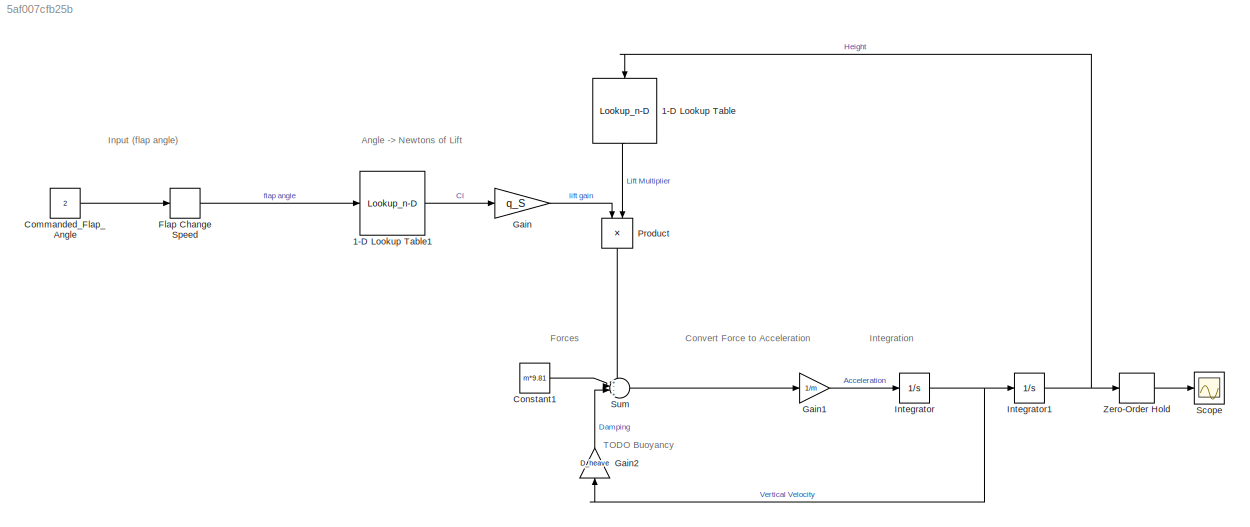
MODEL slx_5af007cfb25b
KIND model
CONFIG AbsTol = auto
CONFIG EnableMultiTasking = off
CONFIG FixedStep = auto
CONFIG MaxStep = auto
CONFIG MinStep = auto
CONFIG RelTol = 1e-3
CONFIG SampleTimeConstraint = Unconstrained
CONFIG SolverName = VariableStepAuto
CONFIG StartTime = 0.0
CONFIG StopTime = 10.0
BLOCK [Lookup_n-D] 1-D Lookup Table
  BreakpointsForDimension1 = [0, 0.4, 0.5, 0.6, 0.7]
  InputPortMap = u0
  InternalRulePriority = Speed
  NameLocation = left
  NumberOfTableDimensions = 1
  RndMeth = Simplest
  Table = [1.1, 1.0, 0.8, 0.2, 0.0]
BLOCK [Lookup_n-D] 1-D Lookup Table1
  BreakpointsForDimension1 = alpha_deg
  InputPortMap = u0
  InternalRulePriority = Speed
  NumberOfTableDimensions = 1
  RndMeth = Simplest
  Table = cl_data
BLOCK [Constant] Commanded_Flap_Angle
  Value = 2
BLOCK [Constant] Constant1
  Value = m*9.81
BLOCK [RateLimiter] Flap Change Speed
  FallingSlewLimit = -servo_max_speed
  RisingSlewLimit = servo_max_speed
  SampleTimeMode = inherited
BLOCK [Gain] Gain
  Gain = q_S
BLOCK [Gain] Gain1
  Gain = 1/m
BLOCK [Gain] Gain2
  Gain = D_heave
  NameLocation = right
BLOCK [Integrator] Integrator
BLOCK [Integrator] Integrator1
  InitialCondition = start_height
  LimitOutput = on
  LowerSaturationLimit = 0
BLOCK [Product] Product
  NameLocation = left
BLOCK [Scope] Scope
  ActiveDisplayYMaximum = 0.76754445137472849
  ActiveDisplayYMinimum = 0.075647594713752209
  ContainerLayout = {"WindowBounds":[128,96,1280,768]}
  Floating = off
  GraphicalSettings = {"Style":{"BackgroundColor":[0.12941176470588237,0.12941176470588237,0.12941176470588237],"AxesColor":[0.07058823529411765,0.07058823529411765,0.07058823529411765],"LabelsColor":[0.8509803921568627,0.8509803921568627,0.8509803921568627],"PreserveColors":false,"Visible":[true],"LineStyle":["-"],"LineWidth":[1.5],"BarWidth":[0.9],"LineColor":["auto"],"LineFaceAlpha":[1],"LineEdgeAlpha":[1],"Marker":...<+1991ch>
  MultipleDisplayCache = [{"MaxYLimMag":0.1125,"MaxYLimReal":0.76754445137472849,"MinYLimMag":0,"MinYLimReal":0.075647594713752209,"PlotAsMagnitudePhase":false,"ShowGrid":true,"ShowLegend":false,"Title":"%<SignalLabel>","YLabel":""}]
  NumInputPorts = 1
  ScopeFrameLocation = container
  Visible = on
  WasSavedAsWebScope = on
  WindowPosition = [128.000000,96.000000,1280.000000,768.000000,]
BLOCK [Sum] Sum
  Inputs = +--+
BLOCK [ZeroOrderHold] Zero-Order Hold
  SampleTime = sensor_sample_time
ANNOTATION (root): Angle -> Newtons of Lift
ANNOTATION (root): Convert Force to Acceleration
ANNOTATION (root): Forces
ANNOTATION (root): Input (flap angle)
ANNOTATION (root): Integration
ANNOTATION (root): TODO Buoyancy
LINE 1-D Lookup Table1:1 -> Gain:1
LINE 1-D Lookup Table:1 -> Product:2
LINE Commanded_Flap_Angle:1 -> Flap Change Speed:1
LINE Constant1:1 -> Sum:2
LINE Flap Change Speed:1 -> 1-D Lookup Table1:1
LINE Gain1:1 -> Integrator:1
LINE Gain2:1 -> Sum:3
LINE Gain:1 -> Product:1
NET Integrator1:1 -> 1-D Lookup Table:1, Zero-Order Hold:1
NET Integrator:1 -> Gain2:1, Integrator1:1
LINE Product:1 -> Sum:1
LINE Sum:1 -> Gain1:1
LINE Zero-Order Hold:1 -> Scope:1
note: NET lines group one-source signal fan-out (src -> all destinations, sorted); 1:1 wires keep LINE
